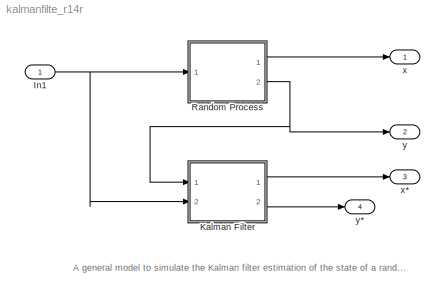
MODEL kalmanfilte_r14r
KIND model
BLOCK [Inport] In1
  IconDisplay = Port number
  OutDataType = sfix(16)
  OutScaling = 2^0
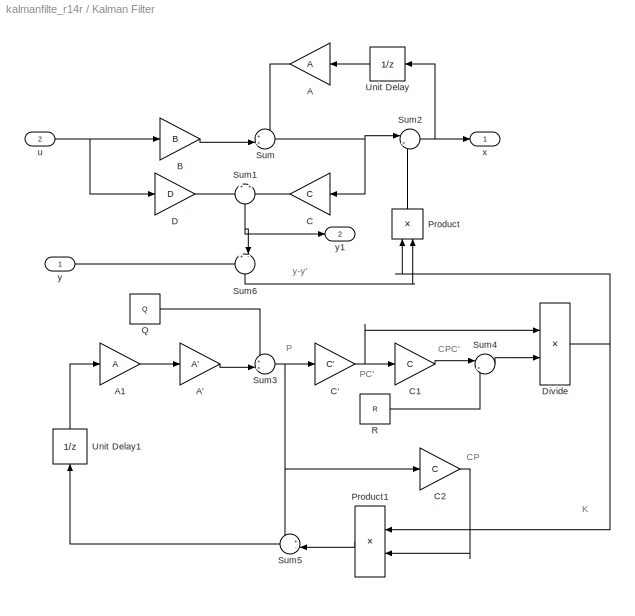
BLOCK [SubSystem] Kalman Filter
  MaskCallbackString = |||||||
  MaskDescription = Linear Random Process\nx(k+1)=Ax(k)+Bu(k)+w\ny(k)=Cx(k)+Du(k)+v\nw~N(0,Q)\nw~N(0,R)
  MaskDisplay = disp(sprintf('Kalman\\n Filter'))\nport_label('output',2,'y')\nport_label('output',1,'x')\nport_label('input',1,'y')\nport_label('input',2,'u')\n\n\n\n
  MaskEnableString = on,on,on,on,on,on,on,on
  MaskIconFrame = on
  MaskIconOpaque = on
  MaskIconRotate = none
  MaskIconUnits = autoscale
  MaskPromptString = x0|P0|A|B|C|D|Q|R
  MaskStyleString = edit,edit,edit,edit,edit,edit,edit,edit
  MaskTabNameString = ,,,,,,,
  MaskToolTipString = on,on,on,on,on,on,on,on
  MaskTunableValueString = on,on,on,on,on,on,on,on
  MaskValueString = x1|P1|A1|B1|C1|D1|Q1|R1
  MaskVarAliasString = ,,,,,,,
  MaskVariables = x0=@1;P0=@2;A=@3;B=@4;C=@5;D=@6;Q=@7;R=@8;
  MaskVisibilityString = on,on,on,on,on,on,on,on
  MinAlgLoopOccurrences = off
  Ports = [2, 2]
  RTWSystemCode = Auto
BLOCK [Gain] Kalman Filter/A
  Gain = A
  Multiplication = Matrix(K*u)
  OutDataType = sfix(16)
  OutDataTypeMode = Inherit via internal rule
  OutScaling = 2^0
  ParameterDataType = sfix(16)
  ParameterDataTypeMode = Inherit via internal rule
  ParameterScaling = 2^0
  SaturateOnIntegerOverflow = off
BLOCK [Gain] Kalman Filter/A'
  Gain = A'
  Multiplication = Matrix(u*K)
  OutDataType = sfix(16)
  OutDataTypeMode = Inherit via internal rule
  OutScaling = 2^0
  ParameterDataType = sfix(16)
  ParameterDataTypeMode = Inherit via internal rule
  ParameterScaling = 2^0
  SaturateOnIntegerOverflow = off
BLOCK [Gain] Kalman Filter/A1
  Gain = A
  Multiplication = Matrix(K*u)
  OutDataType = sfix(16)
  OutDataTypeMode = Inherit via internal rule
  OutScaling = 2^0
  ParameterDataType = sfix(16)
  ParameterDataTypeMode = Inherit via internal rule
  ParameterScaling = 2^0
  SaturateOnIntegerOverflow = off
BLOCK [Gain] Kalman Filter/B
  Gain = B
  Multiplication = Matrix(K*u)
  OutDataType = sfix(16)
  OutDataTypeMode = Inherit via internal rule
  OutScaling = 2^0
  ParameterDataType = sfix(16)
  ParameterDataTypeMode = Inherit via internal rule
  ParameterScaling = 2^0
  SaturateOnIntegerOverflow = off
BLOCK [Gain] Kalman Filter/C
  Gain = C
  Multiplication = Matrix(K*u)
  OutDataType = sfix(16)
  OutDataTypeMode = Inherit via internal rule
  OutScaling = 2^0
  ParameterDataType = sfix(16)
  ParameterDataTypeMode = Inherit via internal rule
  ParameterScaling = 2^0
  SaturateOnIntegerOverflow = off
BLOCK [Gain] Kalman Filter/C'
  Gain = C'
  Multiplication = Matrix(u*K)
  OutDataType = sfix(16)
  OutDataTypeMode = Inherit via internal rule
  OutScaling = 2^0
  ParameterDataType = sfix(16)
  ParameterDataTypeMode = Inherit via internal rule
  ParameterScaling = 2^0
  SaturateOnIntegerOverflow = off
BLOCK [Gain] Kalman Filter/C1
  Gain = C
  Multiplication = Matrix(K*u)
  OutDataType = sfix(16)
  OutDataTypeMode = Inherit via internal rule
  OutScaling = 2^0
  ParameterDataType = sfix(16)
  ParameterDataTypeMode = Inherit via internal rule
  ParameterScaling = 2^0
  SaturateOnIntegerOverflow = off
BLOCK [Gain] Kalman Filter/C2
  Gain = C
  Multiplication = Matrix(K*u)
  OutDataType = sfix(16)
  OutDataTypeMode = Inherit via internal rule
  OutScaling = 2^0
  ParameterDataType = sfix(16)
  ParameterDataTypeMode = Inherit via internal rule
  ParameterScaling = 2^0
  SaturateOnIntegerOverflow = off
BLOCK [Gain] Kalman Filter/D
  Gain = D
  Multiplication = Matrix(K*u)
  OutDataType = sfix(16)
  OutDataTypeMode = Inherit via internal rule
  OutScaling = 2^0
  ParameterDataType = sfix(16)
  ParameterDataTypeMode = Inherit via internal rule
  ParameterScaling = 2^0
  SaturateOnIntegerOverflow = off
BLOCK [Product] Kalman Filter/Divide
  InputSameDT = off
  Inputs = */
  Multiplication = Matrix(*)
  OutDataType = sfix(16)
  OutDataTypeMode = Inherit via internal rule
  OutScaling = 2^-10
  Ports = [2, 1]
  RndMeth = Floor
  SaturateOnIntegerOverflow = off
BLOCK [Product] Kalman Filter/Product
  InputSameDT = off
  Multiplication = Matrix(*)
  OutDataType = sfix(16)
  OutDataTypeMode = Inherit via internal rule
  OutScaling = 2^0
  Ports = [2, 1]
  SaturateOnIntegerOverflow = off
BLOCK [Product] Kalman Filter/Product1
  InputSameDT = off
  Multiplication = Matrix(*)
  OutDataType = sfix(16)
  OutDataTypeMode = Inherit via internal rule
  OutScaling = 2^0
  Ports = [2, 1]
  SaturateOnIntegerOverflow = off
BLOCK [Constant] Kalman Filter/Q
  OutDataType = sfix(16)
  OutScaling = 2^0
  Value = Q
BLOCK [Constant] Kalman Filter/R
  OutDataType = sfix(16)
  OutScaling = 2^0
  Value = R
BLOCK [Sum] Kalman Filter/Sum
  IconShape = round
  InputSameDT = off
  Inputs = ++|
  OutDataType = sfix(16)
  OutDataTypeMode = Inherit via internal rule
  OutScaling = 2^0
  Ports = [2, 1]
  SaturateOnIntegerOverflow = off
BLOCK [Sum] Kalman Filter/Sum1
  IconShape = round
  InputSameDT = off
  Inputs = +|+
  OutDataType = sfix(16)
  OutDataTypeMode = Inherit via internal rule
  OutScaling = 2^0
  Ports = [2, 1]
  SaturateOnIntegerOverflow = off
BLOCK [Sum] Kalman Filter/Sum2
  IconShape = round
  InputSameDT = off
  Inputs = |++
  OutDataType = sfix(16)
  OutDataTypeMode = Inherit via internal rule
  OutScaling = 2^0
  Ports = [2, 1]
  SaturateOnIntegerOverflow = off
BLOCK [Sum] Kalman Filter/Sum3
  IconShape = round
  InputSameDT = off
  Inputs = ++|
  OutDataType = sfix(16)
  OutDataTypeMode = Inherit via internal rule
  OutScaling = 2^0
  Ports = [2, 1]
  SaturateOnIntegerOverflow = off
BLOCK [Sum] Kalman Filter/Sum4
  IconShape = round
  InputSameDT = off
  Inputs = |++
  OutDataType = sfix(16)
  OutDataTypeMode = Inherit via internal rule
  OutScaling = 2^0
  Ports = [2, 1]
  SaturateOnIntegerOverflow = off
BLOCK [Sum] Kalman Filter/Sum5
  IconShape = round
  InputSameDT = off
  Inputs = +-|
  OutDataType = sfix(16)
  OutDataTypeMode = Inherit via internal rule
  OutScaling = 2^0
  Ports = [2, 1]
  SaturateOnIntegerOverflow = off
BLOCK [Sum] Kalman Filter/Sum6
  IconShape = round
  InputSameDT = off
  Inputs = +-|
  OutDataType = sfix(16)
  OutDataTypeMode = Inherit via internal rule
  OutScaling = 2^0
  Ports = [2, 1]
  SaturateOnIntegerOverflow = off
BLOCK [UnitDelay] Kalman Filter/Unit Delay
  X0 = x0
BLOCK [UnitDelay] Kalman Filter/Unit Delay1
  X0 = P0
BLOCK [Inport] Kalman Filter/u
  IconDisplay = Port number
  OutDataType = sfix(16)
  OutScaling = 2^0
  Port = 2
  PortDimensions = size(B,2)
BLOCK [Outport] Kalman Filter/x
  IconDisplay = Port number
  OutDataType = sfix(16)
  OutScaling = 2^0
BLOCK [Inport] Kalman Filter/y
  IconDisplay = Port number
  OutDataType = sfix(16)
  OutScaling = 2^0
BLOCK [Outport] Kalman Filter/y1
  IconDisplay = Port number
  OutDataType = sfix(16)
  OutScaling = 2^0
  Port = 2
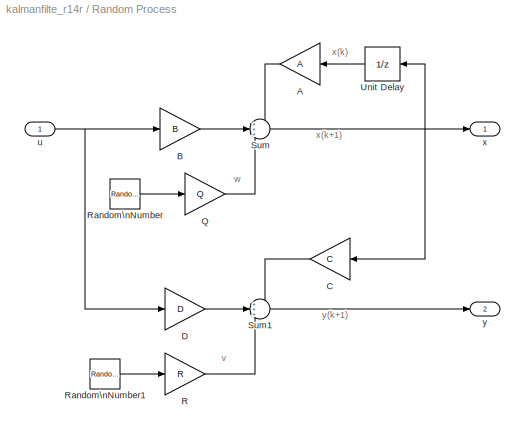
BLOCK [SubSystem] Random Process
  MaskCallbackString = ||||||
  MaskDescription = Linear Random Process\nx(k+1)=Ax(k)+Bu(k)+w\ny(k)=Cx(k)+Du(k)+v\nw~N(0,Q)\nw~N(0,R)
  MaskDisplay = disp(sprintf('Linear\\n Random\\n System'))\nport_label('output',1,'x')\nport_label('output',2,'y')\nport_label('input',1,'u')\n\n
  MaskEnableString = on,on,on,on,on,on,on
  MaskIconFrame = on
  MaskIconOpaque = on
  MaskIconRotate = none
  MaskIconUnits = autoscale
  MaskPromptString = x0|A|B|C|D|Q|R
  MaskStyleString = edit,edit,edit,edit,edit,edit,edit
  MaskTabNameString = ,,,,,,
  MaskToolTipString = on,on,on,on,on,on,on
  MaskTunableValueString = on,on,on,on,on,on,on
  MaskValueString = x0|A|B|C|D|sqrt(Q)|sqrt(R)
  MaskVarAliasString = ,,,,,,
  MaskVariables = x0=@1;A=@2;B=@3;C=@4;D=@5;Q=@6;R=@7;
  MaskVisibilityString = on,on,on,on,on,on,on
  MinAlgLoopOccurrences = off
  Ports = [1, 2]
  RTWSystemCode = Auto
BLOCK [Gain] Random Process/A
  Gain = A
  Multiplication = Matrix(K*u)
  OutDataType = sfix(16)
  OutDataTypeMode = Inherit via internal rule
  OutScaling = 2^0
  ParameterDataType = sfix(16)
  ParameterDataTypeMode = Inherit via internal rule
  ParameterScaling = 2^0
  SaturateOnIntegerOverflow = off
BLOCK [Gain] Random Process/B
  Gain = B
  Multiplication = Matrix(K*u)
  OutDataType = sfix(16)
  OutDataTypeMode = Inherit via internal rule
  OutScaling = 2^0
  ParameterDataType = sfix(16)
  ParameterDataTypeMode = Inherit via internal rule
  ParameterScaling = 2^0
  SaturateOnIntegerOverflow = off
BLOCK [Gain] Random Process/C
  Gain = C
  Multiplication = Matrix(K*u)
  OutDataType = sfix(16)
  OutDataTypeMode = Inherit via internal rule
  OutScaling = 2^0
  ParameterDataType = sfix(16)
  ParameterDataTypeMode = Inherit via internal rule
  ParameterScaling = 2^0
  SaturateOnIntegerOverflow = off
BLOCK [Gain] Random Process/D
  Gain = D
  Multiplication = Matrix(K*u)
  OutDataType = sfix(16)
  OutDataTypeMode = Inherit via internal rule
  OutScaling = 2^0
  ParameterDataType = sfix(16)
  ParameterDataTypeMode = Inherit via internal rule
  ParameterScaling = 2^0
  SaturateOnIntegerOverflow = off
BLOCK [Gain] Random Process/Q
  Gain = Q
  Multiplication = Matrix(K*u)
  OutDataType = sfix(16)
  OutDataTypeMode = Inherit via internal rule
  OutScaling = 2^0
  ParameterDataType = sfix(16)
  ParameterDataTypeMode = Inherit via internal rule
  ParameterScaling = 2^0
  SaturateOnIntegerOverflow = off
BLOCK [Gain] Random Process/R
  Gain = R
  Multiplication = Matrix(K*u)
  OutDataType = sfix(16)
  OutDataTypeMode = Inherit via internal rule
  OutScaling = 2^0
  ParameterDataType = sfix(16)
  ParameterDataTypeMode = Inherit via internal rule
  ParameterScaling = 2^0
  SaturateOnIntegerOverflow = off
BLOCK [RandomNumber] Random Process/Random\nNumber
  Mean = zeros(size(Q,1),1)
  SampleTime = 1
  Seed = 7
  Variance = ones(size(Q,1),1)
BLOCK [RandomNumber] Random Process/Random\nNumber1
  Mean = zeros(size(R,1),1)
  SampleTime = 1
  Variance = ones(size(R,1),1)
BLOCK [Sum] Random Process/Sum
  IconShape = round
  InputSameDT = off
  Inputs = +++
  OutDataType = sfix(16)
  OutDataTypeMode = Inherit via internal rule
  OutScaling = 2^0
  Ports = [3, 1]
  SaturateOnIntegerOverflow = off
BLOCK [Sum] Random Process/Sum1
  IconShape = round
  InputSameDT = off
  Inputs = +++
  OutDataType = sfix(16)
  OutDataTypeMode = Inherit via internal rule
  OutScaling = 2^0
  Ports = [3, 1]
  SaturateOnIntegerOverflow = off
BLOCK [UnitDelay] Random Process/Unit Delay
  X0 = x0
BLOCK [Inport] Random Process/u
  IconDisplay = Port number
  OutDataType = sfix(16)
  OutScaling = 2^0
  PortDimensions = size(B,2)
BLOCK [Outport] Random Process/x
  IconDisplay = Port number
  OutDataType = sfix(16)
  OutScaling = 2^0
BLOCK [Outport] Random Process/y
  IconDisplay = Port number
  OutDataType = sfix(16)
  OutScaling = 2^0
  Port = 2
BLOCK [Outport] x
  IconDisplay = Port number
  OutDataType = sfix(16)
  OutScaling = 2^0
BLOCK [Outport] x*
  IconDisplay = Port number
  OutDataType = sfix(16)
  OutScaling = 2^0
  Port = 3
BLOCK [Outport] y
  IconDisplay = Port number
  OutDataType = sfix(16)
  OutScaling = 2^0
  Port = 2
BLOCK [Outport] y*
  IconDisplay = Port number
  OutDataType = sfix(16)
  OutScaling = 2^0
  Port = 4
ANNOTATION (root): A general model to simulate the Kalman filter estimation of the state of a random process.
ANNOTATION Kalman Filter: CP
ANNOTATION Kalman Filter: CPC'
ANNOTATION Kalman Filter: K
ANNOTATION Kalman Filter: P
ANNOTATION Kalman Filter: PC'
ANNOTATION Kalman Filter: y-y'
ANNOTATION Random Process: v
ANNOTATION Random Process: w
ANNOTATION Random Process: x(k)
ANNOTATION Random Process: x(k+1)
ANNOTATION Random Process: y(k+1)
NET In1:1 -> Kalman Filter:2, Random Process:1
LINE Kalman Filter/A':1 -> Kalman Filter/Sum3:2
LINE Kalman Filter/A1:1 -> Kalman Filter/A':1
LINE Kalman Filter/A:1 -> Kalman Filter/Sum:1
LINE Kalman Filter/B:1 -> Kalman Filter/Sum:2
NET Kalman Filter/C':1 -> Kalman Filter/C1:1, Kalman Filter/Divide:1
LINE Kalman Filter/C1:1 -> Kalman Filter/Sum4:1
LINE Kalman Filter/C2:1 -> Kalman Filter/Product1:2
LINE Kalman Filter/C:1 -> Kalman Filter/Sum1:2
LINE Kalman Filter/D:1 -> Kalman Filter/Sum1:1
NET Kalman Filter/Divide:1 -> Kalman Filter/Product1:1, Kalman Filter/Product:1
LINE Kalman Filter/Product1:1 -> Kalman Filter/Sum5:2
LINE Kalman Filter/Product:1 -> Kalman Filter/Sum2:2
LINE Kalman Filter/Q:1 -> Kalman Filter/Sum3:1
LINE Kalman Filter/R:1 -> Kalman Filter/Sum4:2
NET Kalman Filter/Sum1:1 -> Kalman Filter/Sum6:2, Kalman Filter/y1:1
NET Kalman Filter/Sum2:1 -> Kalman Filter/Unit Delay:1, Kalman Filter/x:1
NET Kalman Filter/Sum3:1 -> Kalman Filter/C':1, Kalman Filter/C2:1, Kalman Filter/Sum5:1
LINE Kalman Filter/Sum4:1 -> Kalman Filter/Divide:2
LINE Kalman Filter/Sum5:1 -> Kalman Filter/Unit Delay1:1
LINE Kalman Filter/Sum6:1 -> Kalman Filter/Product:2
NET Kalman Filter/Sum:1 -> Kalman Filter/C:1, Kalman Filter/Sum2:1
LINE Kalman Filter/Unit Delay1:1 -> Kalman Filter/A1:1
LINE Kalman Filter/Unit Delay:1 -> Kalman Filter/A:1
NET Kalman Filter/u:1 -> Kalman Filter/B:1, Kalman Filter/D:1
LINE Kalman Filter/y:1 -> Kalman Filter/Sum6:1
LINE Kalman Filter:1 -> x*:1
LINE Kalman Filter:2 -> y*:1
LINE Random Process/A:1 -> Random Process/Sum:1
LINE Random Process/B:1 -> Random Process/Sum:2
LINE Random Process/C:1 -> Random Process/Sum1:1
LINE Random Process/D:1 -> Random Process/Sum1:2
LINE Random Process/Q:1 -> Random Process/Sum:3
LINE Random Process/R:1 -> Random Process/Sum1:3
LINE Random Process/Random\nNumber1:1 -> Random Process/R:1
LINE Random Process/Random\nNumber:1 -> Random Process/Q:1
LINE Random Process/Sum1:1 -> Random Process/y:1
NET Random Process/Sum:1 -> Random Process/C:1, Random Process/Unit Delay:1, Random Process/x:1
LINE Random Process/Unit Delay:1 -> Random Process/A:1
NET Random Process/u:1 -> Random Process/B:1, Random Process/D:1
LINE Random Process:1 -> x:1
NET Random Process:2 -> Kalman Filter:1, y:1
note: NET lines group one-source signal fan-out (src -> all destinations, sorted); 1:1 wires keep LINE
